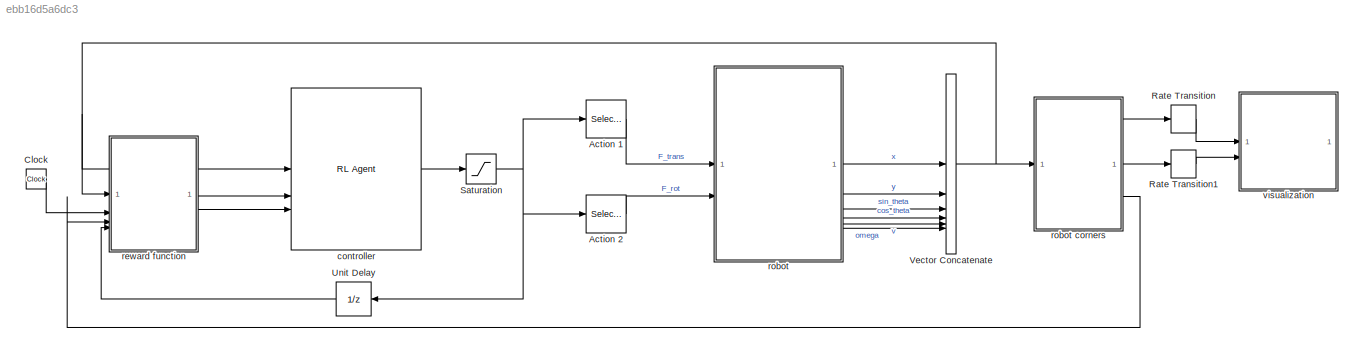
MODEL slx_ebb16d5a6dc3
KIND model
CONFIG AbsTol = auto
CONFIG EnableMultiTasking = off
CONFIG FixedStep = auto
CONFIG MaxStep = auto
CONFIG MinStep = auto
CONFIG RelTol = 1e-6
CONFIG SampleTimeConstraint = Unconstrained
CONFIG SolverName = VariableStepAuto
CONFIG StartTime = 0.0
CONFIG StopTime = 30
WORKSPACE source: mxarray member
WORKSPACE D = 1.5
WORKSPACE L = 1.4
WORKSPACE dt = 0.25
WORKSPACE h = 1.8
WORKSPACE m = 2
WORKSPACE theta0 = 0.7
WORKSPACE v0 = 0.2
WORKSPACE w = 1.2
WORKSPACE w0 = 0
WORKSPACE x0 = -3
WORKSPACE y0 = 3
BLOCK [Selector] Action 1
  IndexOptions = Index vector (dialog)
  Indices = 1
  InputPortWidth = 2
  OutputSizes = 1
BLOCK [Selector] Action 2
  IndexOptions = Index vector (dialog)
  Indices = 2
  InputPortWidth = 2
  OutputSizes = 1
BLOCK [Clock] Clock
  Decimation = 20
BLOCK [RateTransition] Rate Transition
  OutPortSampleTime = dt
BLOCK [RateTransition] Rate Transition1
  OutPortSampleTime = dt
BLOCK [Saturate] Saturation
  LowerLimit = -1
  UpperLimit = 1
BLOCK [UnitDelay] Unit Delay
  HasFrameUpgradeWarning = on
  SampleTime = -1
BLOCK [Concatenate] Vector Concatenate
  NumInputs = 6
BLOCK [Reference] controller  REF=rllib/RL Agent
  SourceBlock = rllib/RL Agent
  SourceType = RL Agent
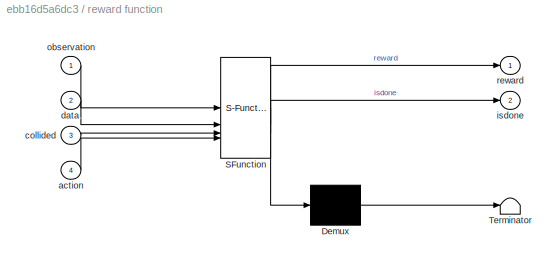
BLOCK [SubSystem] reward function
  ErrorFcn = Stateflow.Translate.translate
  PermitHierarchicalResolution = ExplicitOnly
  SFBlockType = MATLAB Function
  TreatAsAtomicUnit = on
BLOCK [Demux] reward function/ Demux 
  Outputs = 1
BLOCK [S-Function] reward function/ SFunction 
  EnableBusSupport = on
  FunctionName = sf_sfun
  PortCounts = [4 3]
  SFcnIsStateOwnerBlock = off
  SFunctionDeploymentMode = off
  Tag = Stateflow S-Function 2
BLOCK [Terminator] reward function/ Terminator 
BLOCK [Inport] reward function/action
  Port = 4
BLOCK [Inport] reward function/collided
  Port = 3
BLOCK [Inport] reward function/data
  Port = 2
BLOCK [Outport] reward function/isdone
  Port = 2
BLOCK [Inport] reward function/observation
BLOCK [Outport] reward function/reward
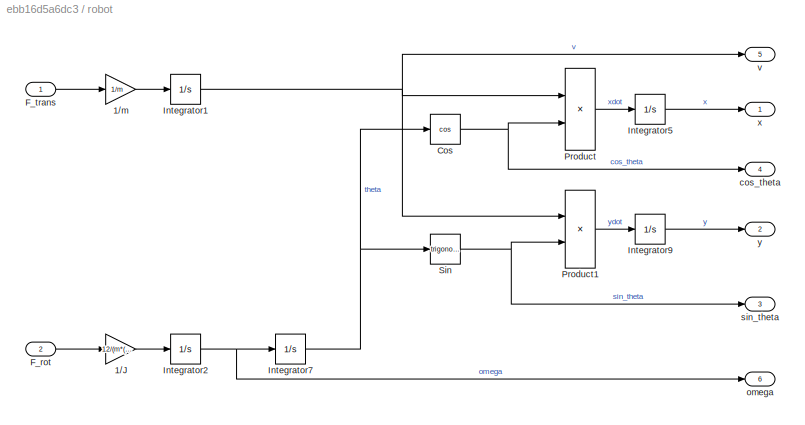
BLOCK [SubSystem] robot
  SystemSampleTime = 0.1
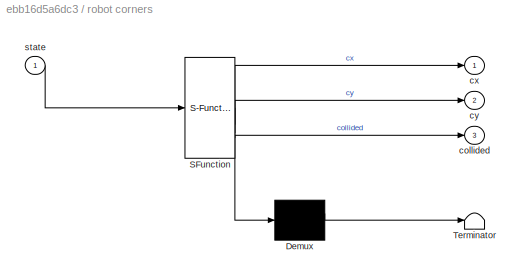
BLOCK [SubSystem] robot corners
  ErrorFcn = Stateflow.Translate.translate
  PermitHierarchicalResolution = ExplicitOnly
  SFBlockType = MATLAB Function
  TreatAsAtomicUnit = on
BLOCK [Demux] robot corners/ Demux 
  Outputs = 1
BLOCK [S-Function] robot corners/ SFunction 
  EnableBusSupport = on
  FunctionName = sf_sfun
  Parameters = D,L,h,w
  PortCounts = [1 4]
  SFcnIsStateOwnerBlock = off
  SFunctionDeploymentMode = off
  Tag = Stateflow S-Function 1
BLOCK [Terminator] robot corners/ Terminator 
BLOCK [Outport] robot corners/collided
  Port = 3
BLOCK [Outport] robot corners/cx
BLOCK [Outport] robot corners/cy
  Port = 2
BLOCK [Inport] robot corners/state
BLOCK [Gain] robot/1//J
  Gain = 12/(m*(h*h+w*w))
BLOCK [Gain] robot/1//m
  Gain = 1/m
BLOCK [Trigonometry] robot/Cos
  NameLocation = top
  Operator = cos
BLOCK [Inport] robot/F_rot
  Port = 2
BLOCK [Inport] robot/F_trans
BLOCK [Integrator] robot/Integrator1
  InitialCondition = v0
  LimitOutput = on
  LowerSaturationLimit = -5
  UpperSaturationLimit = 5
BLOCK [Integrator] robot/Integrator2
  InitialCondition = w0
  LimitOutput = on
  LowerSaturationLimit = -2*pi
  UpperSaturationLimit = 2*pi
BLOCK [Integrator] robot/Integrator5
  InitialCondition = x0
BLOCK [Integrator] robot/Integrator7
  InitialCondition = theta0
  UpperSaturationLimit = pi/2
  WrapState = on
BLOCK [Integrator] robot/Integrator9
  InitialCondition = y0
BLOCK [Product] robot/Product
BLOCK [Product] robot/Product1
BLOCK [Trigonometry] robot/Sin
  NameLocation = top
BLOCK [Outport] robot/cos_theta
  Port = 4
  SampleTime = dt
BLOCK [Outport] robot/omega
  Port = 6
BLOCK [Outport] robot/sin_theta
  Port = 3
  SampleTime = dt
BLOCK [Outport] robot/v
  Port = 5
  SampleTime = dt
BLOCK [Outport] robot/x
  SampleTime = dt
BLOCK [Outport] robot/y
  Port = 2
  SampleTime = dt
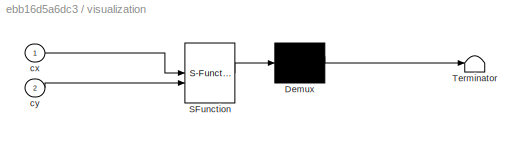
BLOCK [SubSystem] visualization
  Commented = on
  ErrorFcn = Stateflow.Translate.translate
  PermitHierarchicalResolution = ExplicitOnly
  SFBlockType = MATLAB Function
  TreatAsAtomicUnit = on
BLOCK [Demux] visualization/ Demux 
  Outputs = 1
BLOCK [S-Function] visualization/ SFunction 
  EnableBusSupport = on
  FunctionName = sf_sfun
  Parameters = D,L
  PortCounts = [2 1]
  SFcnIsStateOwnerBlock = off
  SFunctionDeploymentMode = off
  Tag = Stateflow S-Function 3
BLOCK [Terminator] visualization/ Terminator 
BLOCK [Inport] visualization/cx
BLOCK [Inport] visualization/cy
  Port = 2
LINE Action 1:1 -> robot:1
LINE Action 2:1 -> robot:2
LINE Clock:1 -> reward function:2
LINE Rate Transition1:1 -> visualization:2
LINE Rate Transition:1 -> visualization:1
NET Saturation:1 -> Action 1:1, Action 2:1, Unit Delay:1
LINE Unit Delay:1 -> reward function:4
NET Vector Concatenate:1 -> controller:1, reward function:1, robot corners:1
LINE controller:1 -> Saturation:1
LINE reward function:1 -> controller:2
LINE reward function:2 -> controller:3
LINE robot corners:1 -> Rate Transition:1
LINE robot corners:2 -> Rate Transition1:1
LINE robot corners:3 -> reward function:3
LINE robot/1//J:1 -> robot/Integrator2:1
LINE robot/1//m:1 -> robot/Integrator1:1
NET robot/Cos:1 -> robot/Product:2, robot/cos_theta:1
LINE robot/F_rot:1 -> robot/1//J:1
LINE robot/F_trans:1 -> robot/1//m:1
NET robot/Integrator1:1 -> robot/Product1:1, robot/Product:1, robot/v:1
NET robot/Integrator2:1 -> robot/Integrator7:1, robot/omega:1
LINE robot/Integrator5:1 -> robot/x:1
NET robot/Integrator7:1 -> robot/Cos:1, robot/Sin:1
LINE robot/Integrator9:1 -> robot/y:1
LINE robot/Product1:1 -> robot/Integrator9:1
LINE robot/Product:1 -> robot/Integrator5:1
NET robot/Sin:1 -> robot/Product1:2, robot/sin_theta:1
LINE robot:1 -> Vector Concatenate:1
LINE robot:2 -> Vector Concatenate:2
LINE robot:3 -> Vector Concatenate:3
LINE robot:4 -> Vector Concatenate:4
LINE robot:5 -> Vector Concatenate:5
LINE robot:6 -> Vector Concatenate:6
note: NET lines group one-source signal fan-out (src -> all destinations, sorted); 1:1 wires keep LINE
CHART robot corners states=1 transitions=1
  STATE_LABEL 'eML_blk_kernel()'
  STATE_LABEL 'SCRIPT:\nfunction [cx,cy,collided] = getcorners(state,h,w,L, D)\n\n% preallocate outputs\n% cx = zeros(4,1);\n% cy = zeros(4,1);\n\n% extract individual components\nx = state(1);\ny = state(2);\ns = state(3);\nc = state(4);\n\n% four corners\np = [h,-h,-h,h;w,w,-w,-w]/2;\n\n% rotation matrix\nM = [c,-s;s,c];\n\n% rotate points\np = M*p;\n% translate and extract x,y\ncx = x*ones(1,4) + p(1,:);\ncy = y*ones(1,4) + p(2,:);...<+471ch>'
CHART reward function states=1 transitions=1
  STATE_LABEL 'eML_blk_kernel()'
  STATE_LABEL 'SCRIPT:\nfunction [reward,isdone] = reward(observation, data, collided, action)\n\n% out through the bottom?\ny = observation(2);\nmadeit = (y < -1.5);\n\ntime = madeit * data;\n\n% calculate reward value\nreward = rewardfun_new(observation,action,madeit,collided,time);\n\n% done if either failed (crashed) or succeeded\nisdone = collided || madeit;\n'
CHART visualization states=1 transitions=1
  STATE_LABEL 'eML_blk_kernel()'
  STATE_LABEL 'SCRIPT:\nfunction drawEnvironment(cx,cy,D,L)\n\ncoder.extrinsic("plotRobot");\nplotRobot(cx,cy,D,L);'
CHART  states=0 transitions=0
CHART  states=0 transitions=0
CHART  states=0 transitions=0
